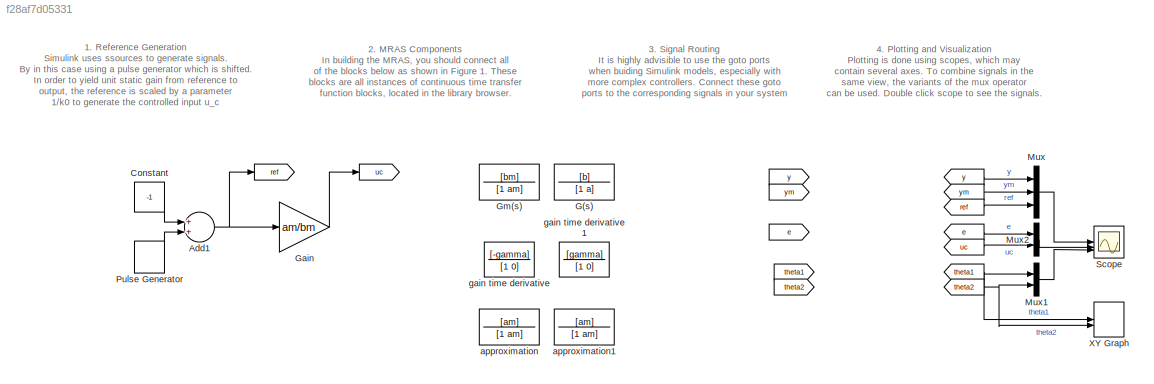
MODEL slx_f28af7d05331
KIND library
CONFIG AbsTol = auto
CONFIG EnableMultiTasking = off
CONFIG FixedStep = auto
CONFIG MaxStep = auto
CONFIG MinStep = auto
CONFIG RelTol = 1e-3
CONFIG SampleTimeConstraint = Unconstrained
CONFIG SolverName = VariableStepAuto
CONFIG StartTime = 0.0
CONFIG StopTime = 10.0
BLOCK [From]  
  GotoTag = y
BLOCK [From]   
  GotoTag = ym
BLOCK [From]    
  GotoTag = ref
BLOCK [From]     
  GotoTag = e
BLOCK [From]      
  GotoTag = theta1
BLOCK [Goto]       
  GotoTag = y
BLOCK [Goto]        
  GotoTag = ym
BLOCK [Goto]         
  GotoTag = e
  NameLocation = top
BLOCK [Goto]          
  GotoTag = theta1
BLOCK [Goto]           
  GotoTag = ref
BLOCK [Goto]            
  GotoTag = theta2
  NameLocation = top
BLOCK [Goto]             
  GotoTag = uc
  NameLocation = top
BLOCK [From]               
  GotoTag = theta2
BLOCK [From]                
  GotoTag = uc
BLOCK [Sum] Add1
BLOCK [Constant] Constant
  SampleTime = 0.1
  Value = -1
BLOCK [TransferFcn] G(s)
  Denominator = [1 a]
  Numerator = [b]
BLOCK [Gain] Gain
  Gain = am/bm
BLOCK [TransferFcn] Gm(s)
  Denominator = [1 am]
  Numerator = [bm]
BLOCK [Mux] Mux
  DisplayOption = bar
  Inputs = 3
BLOCK [Mux] Mux1
  DisplayOption = bar
  Inputs = 2
BLOCK [Mux] Mux2
  DisplayOption = bar
  Inputs = 2
BLOCK [DiscretePulseGenerator] Pulse Generator
  Amplitude = 2
  Period = 10
  PulseType = Time based
  PulseWidth = 50
BLOCK [Scope] Scope
  Floating = off
  NumInputPorts = 3
  ScopeSpecificationString = Simulink.scopes.TimeScopeBlockCfg('CurrentConfiguration', extmgr.ConfigurationSet(extmgr.Configuration('Core','General UI',true,'FigureColor',[1 1 1]),extmgr.Configuration('Core','Source UI',true),extmgr.Configuration('Sources','WiredSimulink',true,'DataLoggingSaveFormat','StructureWithTime','DataLoggingLimitDataPoints',true,'DataLoggingDecimation','1','DataLoggingDecimateData',true),extmgr.Config...<+5432ch>
BLOCK [Record] XY Graph
  CompatibilityTag = XY
  FileSettingsInternal = {"entries":[{"content":{"excelSettings":{"content":{},"type":"Streamout.ExcelSettings"}},"type":"Streamout.FileSettingStorage","uuid":""}],"packageUris":["http:\/\/schema.mathworks.com\/mf0\/streamout_blocks\/R2020a"],"version":"1.0"}
  Layout = [1 1]
  SignalsInternal = {"entries":[{"content":{"signals":[{"content":{"blockPath":[],"dimensions":[1],"domain":"","lineColor":"#a2142f","plots":[ 1 ],"port":1,"signalID":1,"signalName":"     "},"type":"RecordBlkView.Signal","uuid":""},{"content":{"blockPath":[],"dimensions":[1],"domain":"","lineColor":"#139fff","plots":[ 1 ],"port":2,"signalID":2,"signalName":"              "},"type":"RecordBlkView.Signal","uuid":""}]},...<+143ch>
  VisualizationBindings = {"xyplotplugin":{"info":[{"series":[{"bindingParametersList":[{"parameter":"X-Axis","signalID":1,"signalName":"     "},{"parameter":"Y-Axis","signalID":2,"signalName":"              "}],"seriesID":0}],"subplotID":1}]}}
  st = -1
BLOCK [TransferFcn] approximation
  Denominator = [1 am]
  Numerator = [am]
BLOCK [TransferFcn] approximation1
  Denominator = [1 am]
  Numerator = [am]
BLOCK [TransferFcn] gain time derivative
  Denominator = [1 0]
  NameLocation = left
  Numerator = [-gamma]
BLOCK [TransferFcn] gain time derivative1
  Denominator = [1 0]
  NameLocation = right
  Numerator = [gamma]
ANNOTATION (root): 1. Reference Generation Simulink uses ssources to generate signals. By in this case using a pulse generator which is shifted. In order to yield unit static gain from reference to output, the reference is scaled by a parameter 1/k0 to generate the controlled input u_c
ANNOTATION (root): 2. MRAS Components In building the MRAS, you should connect all of the blocks below as shown in Figure 1. These blocks are all instances of continuous time transfer function blocks, located in the library browser.
ANNOTATION (root): 3. Signal Routing It is highly advisible to use the goto ports when buiding Simulink models, especially with more complex controllers. Connect these goto ports to the corresponding signals in your system
ANNOTATION (root): 4. Plotting and Visualization Plotting is done using scopes, which may contain several axes. To combine signals in the same view, the variants of the mux operator can be used. Double click scope to see the signals.
LINE                :1 -> Mux2:2
NET               :1 -> Mux1:2, XY Graph:2
NET      :1 -> Mux1:1, XY Graph:1
LINE     :1 -> Mux2:1
LINE    :1 -> Mux:3
LINE   :1 -> Mux:2
LINE  :1 -> Mux:1
NET Add1:1 ->           :1, Gain:1
LINE Constant:1 -> Add1:1
LINE Gain:1 ->             :1
LINE Mux1:1 -> Scope:3
LINE Mux2:1 -> Scope:2
LINE Mux:1 -> Scope:1
LINE Pulse Generator:1 -> Add1:2
note: NET lines group one-source signal fan-out (src -> all destinations, sorted); 1:1 wires keep LINE
